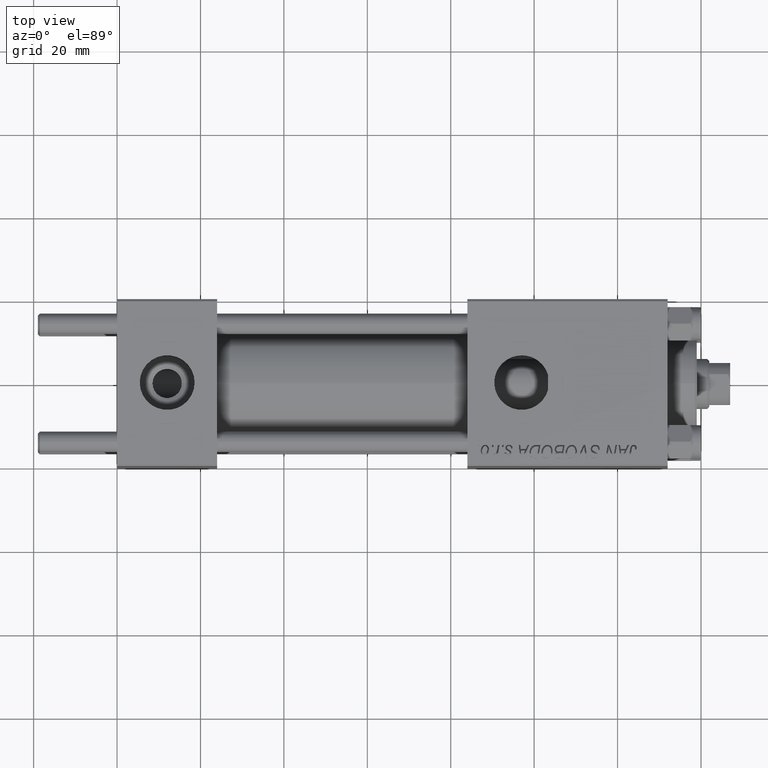
[diagram: clean part render]
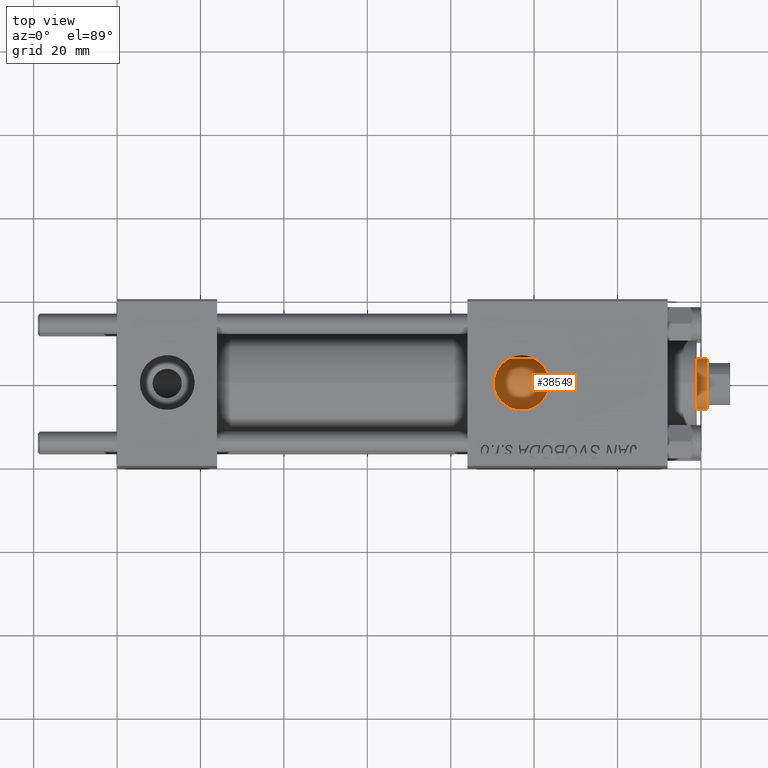
[diagram: same view with one face highlighted and labeled with its STEP entity id]
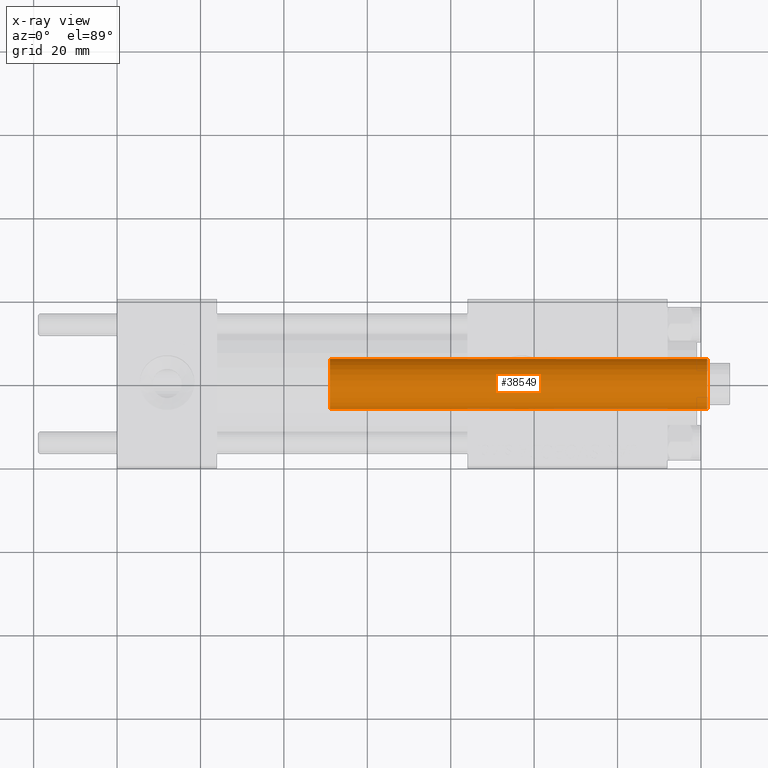
[diagram: x-ray of the same camera — body ghosted, the highlighted face saturated]
A machine part, top view. The second image highlights one B-rep face of the part: STEP entity #38549.
The next image is the same camera in x-ray: the body ghosted, the highlighted face saturated — about 1% of this face is hidden behind the body in this view.
In plain terms, the highlighted cylindrical surface (edge-blend (fillet) strip) has radius 6 mm, axis along (-1, 0, 0).
Its self-contained STEP definition (entity closure, byte-faithful):
#3566 = VERTEX_POINT ( 'NONE', #23900 ) ;
#3981 = VECTOR ( 'NONE', #5153, 1000.000000000000000 ) ;
#5153 = DIRECTION ( 'NONE',  ( -0.000000000000000000, -0.000000000000000000, -1.000000000000000000 ) ) ;
#5647 = CARTESIAN_POINT ( 'NONE',  ( 6.000000000000000888, 7.347880794884120722E-16, 118.0000000000000000 ) ) ;
#5948 = AXIS2_PLACEMENT_3D ( 'NONE', #29512, #33289, #21698 ) ;
#10801 = CARTESIAN_POINT ( 'NONE',  ( 6.000000000000000888, 7.347880794884120722E-16, 117.5000000000000142 ) ) ;
#12147 = VECTOR ( 'NONE', #26337, 1000.000000000000000 ) ;
#12607 = EDGE_CURVE ( 'NONE', #25445, #30208, #18026, .T. ) ;
#13388 = DIRECTION ( 'NONE',  ( 0.000000000000000000, 0.000000000000000000, -1.000000000000000000 ) ) ;
#13404 = ORIENTED_EDGE ( 'NONE', *, *, #25767, .F. ) ;
#17158 = CARTESIAN_POINT ( 'NONE',  ( 0.000000000000000000, 0.000000000000000000, 117.5000000000000142 ) ) ;
#18026 = CIRCLE ( 'NONE', #5948, 6.000000000000000888 ) ;
#18852 = ORIENTED_EDGE ( 'NONE', *, *, #43772, .T. ) ;
#19479 = FACE_OUTER_BOUND ( 'NONE', #42469, .T. ) ;
#21698 = DIRECTION ( 'NONE',  ( 1.000000000000000000, 0.000000000000000000, 0.000000000000000000 ) ) ;
#23468 = ORIENTED_EDGE ( 'NONE', *, *, #12607, .T. ) ;
#23522 = CYLINDRICAL_SURFACE ( 'NONE', #43510, 6.000000000000000888 ) ;
#23900 = CARTESIAN_POINT ( 'NONE',  ( -6.000000000000000888, 0.000000000000000000, 117.5000000000000142 ) ) ;
#25206 = AXIS2_PLACEMENT_3D ( 'NONE', #17158, #13388, #28737 ) ;
#25445 = VERTEX_POINT ( 'NONE', #48759 ) ;
#25767 = EDGE_CURVE ( 'NONE', #48782, #30208, #40146, .T. ) ;
#26337 = DIRECTION ( 'NONE',  ( -0.000000000000000000, -0.000000000000000000, -1.000000000000000000 ) ) ;
#28737 = DIRECTION ( 'NONE',  ( 1.000000000000000000, 0.000000000000000000, 0.000000000000000000 ) ) ;
#29512 = CARTESIAN_POINT ( 'NONE',  ( 0.000000000000000000, 0.000000000000000000, 27.00000000000000000 ) ) ;
#30208 = VERTEX_POINT ( 'NONE', #48754 ) ;
#30441 = ORIENTED_EDGE ( 'NONE', *, *, #34484, .T. ) ;
#33289 = DIRECTION ( 'NONE',  ( 0.000000000000000000, 0.000000000000000000, 1.000000000000000000 ) ) ;
#34484 = EDGE_CURVE ( 'NONE', #3566, #25445, #37905, .T. ) ;
#37905 = LINE ( 'NONE', #45461, #12147 ) ;
#38549 = ADVANCED_FACE ( 'NONE', ( #19479 ), #23522, .T. ) ;
#38877 = DIRECTION ( 'NONE',  ( -1.000000000000000000, 0.000000000000000000, 0.000000000000000000 ) ) ;
#40146 = LINE ( 'NONE', #5647, #3981 ) ;
#42469 = EDGE_LOOP ( 'NONE', ( #13404, #18852, #30441, #23468 ) ) ;
#42649 = DIRECTION ( 'NONE',  ( -0.000000000000000000, -0.000000000000000000, -1.000000000000000000 ) ) ;
#42871 = CIRCLE ( 'NONE', #25206, 6.000000000000000888 ) ;
#42894 = CARTESIAN_POINT ( 'NONE',  ( 0.000000000000000000, 0.000000000000000000, 118.0000000000000000 ) ) ;
#43510 = AXIS2_PLACEMENT_3D ( 'NONE', #42894, #42649, #38877 ) ;
#43772 = EDGE_CURVE ( 'NONE', #48782, #3566, #42871, .T. ) ;
#45461 = CARTESIAN_POINT ( 'NONE',  ( -6.000000000000000888, 0.000000000000000000, 118.0000000000000000 ) ) ;
#48754 = CARTESIAN_POINT ( 'NONE',  ( 6.000000000000000888, 7.347880794884120722E-16, 27.00000000000000000 ) ) ;
#48759 = CARTESIAN_POINT ( 'NONE',  ( -6.000000000000000888, 0.000000000000000000, 27.00000000000000000 ) ) ;
#48782 = VERTEX_POINT ( 'NONE', #10801 ) ;